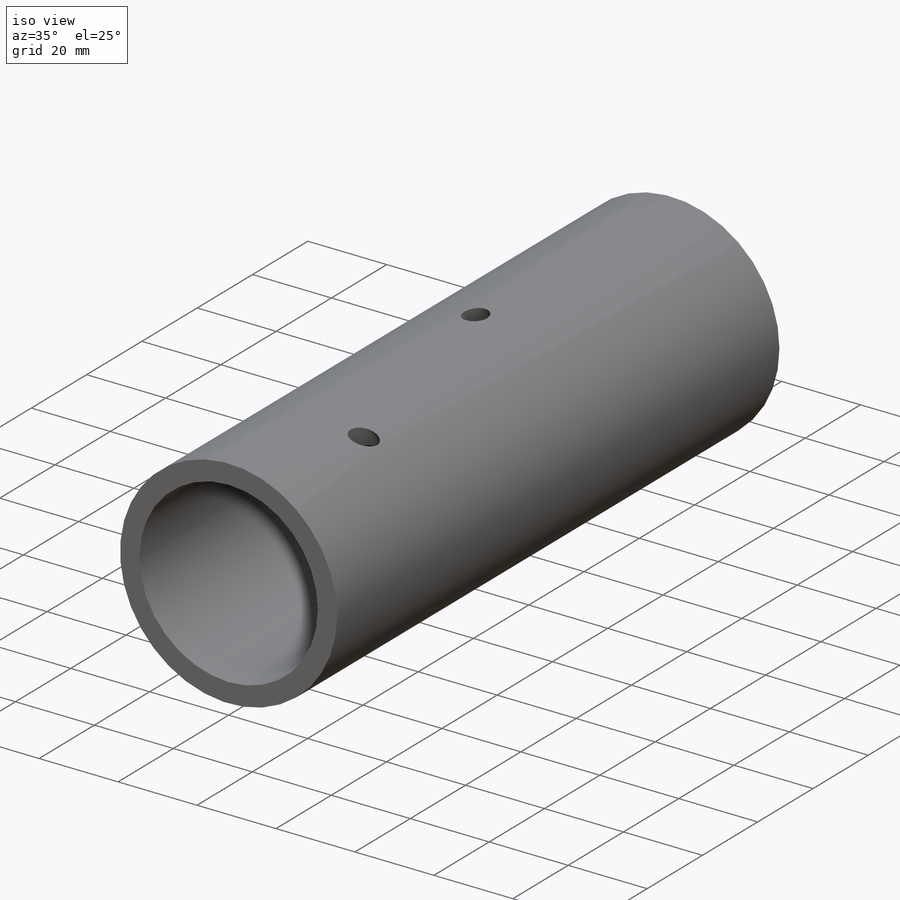
[diagram: iso view]
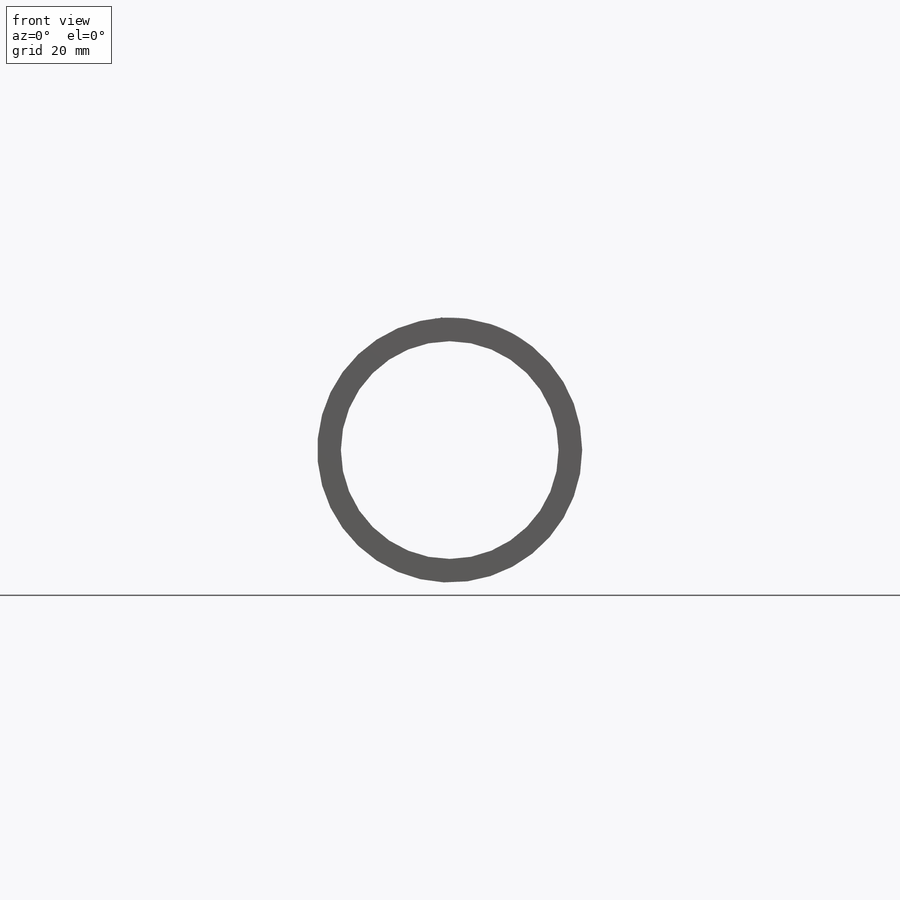
[diagram: front view]
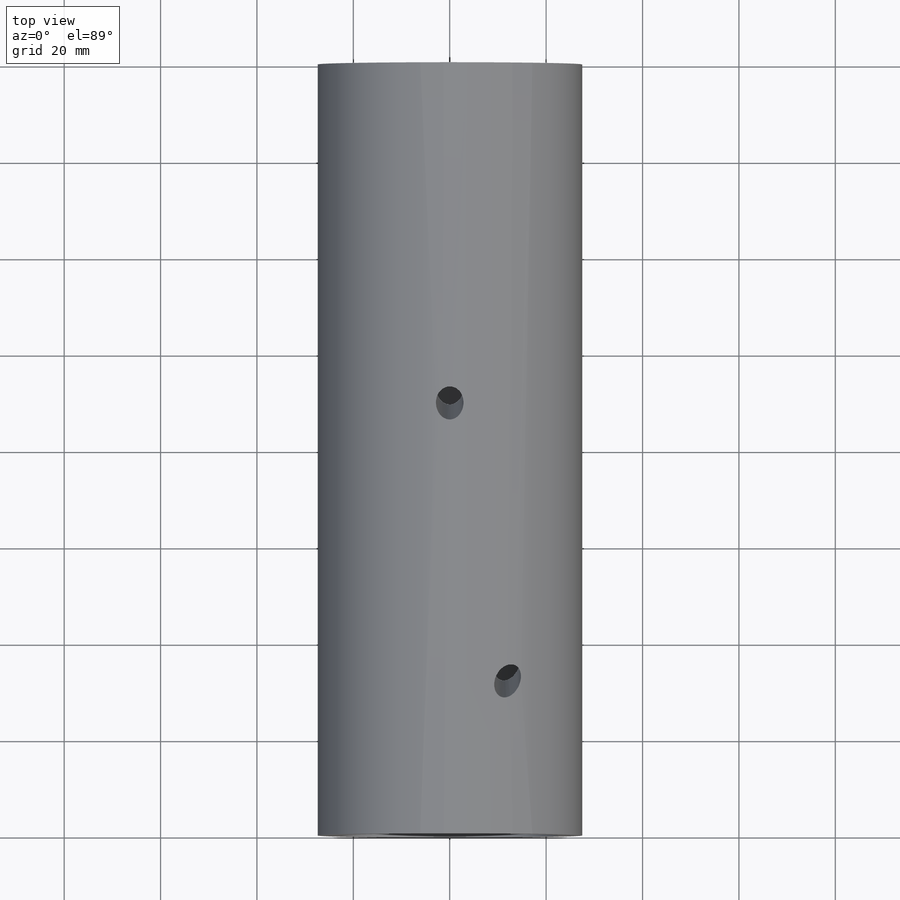
[diagram: top view]
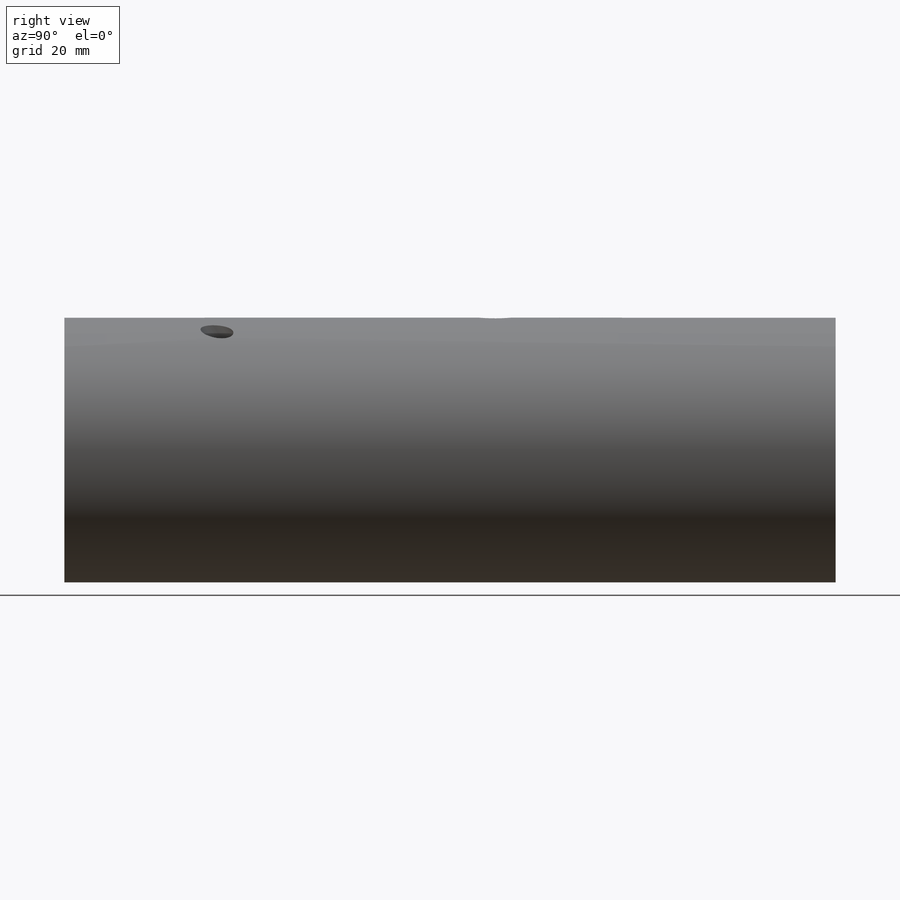
[diagram: right view]
SOLIDWORKS PART (.sldprt)
format: sldprt  version: not decoded by parser v0  size: 223,744 bytes
history: native  units: mm
features: sketch x7, plane x5, hole x2, material x1, extrude x1 (+8 scaffold rows collapsed)
feature tree (24):
  scaffold x8  (default folders/planes/origin — collapsed)
  material  "Material <nicht festgelegt>"
  plane  "Ebene vorne"
  plane  "Ebene oben"
  plane  "Ebene rechts"
  sketch  "Skizze1"
  extrude  "Aufsatz-Linear austragen1"  Depth=160mm
  sketch  "Skizze2"
  plane  "Ebene1"
  sketch  "Skizze5"
  hole  "Ø6.0 (6) Durchmesser Bohrung2"  Diameter=5.73mm Depth=81.391921mm
  sketch  "Skizze7"
  sketch  "Skizze6"  dims[hole-wizard template sketch: 46 standard entries collapsed; hole parameters kept: c15.Bohrerdurchmesser=5.73mm c15.Bohrungstiefe=~81.391921mm c15.D3=~14.816244mm c15.Spitzenwinkel=118.0deg]
  plane  "Ebene2"  Offset=30mm
  hole  "Ø6.0 (6) Durchmesser Bohrung3"  Diameter=5.55mm Depth=51.391921mm
  sketch  "Skizze10"  dims[D1=40.0mm D2=12.0mm]
  sketch  "Skizze9"  dims[hole-wizard template sketch: 46 standard entries collapsed; hole parameters kept: c15.Bohrerdurchmesser=5.55mm c15.Bohrungstiefe=~51.391921mm c15.D3=~14.816244mm c15.Spitzenwinkel=118.0deg]
decode coverage: 6 of 10 modeling features carry decoded parameters
note: ~ marks probable driven/reference dimensions
note: suppression state not decoded; provenance and decode notes live in map.json
